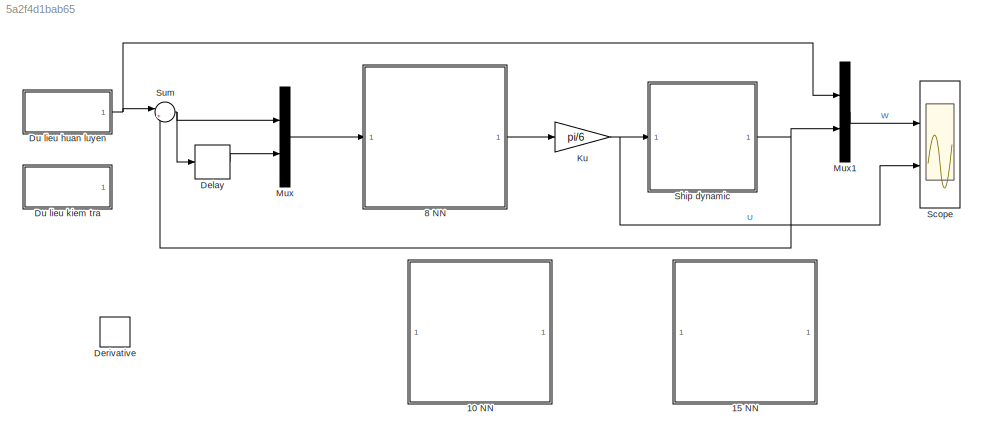
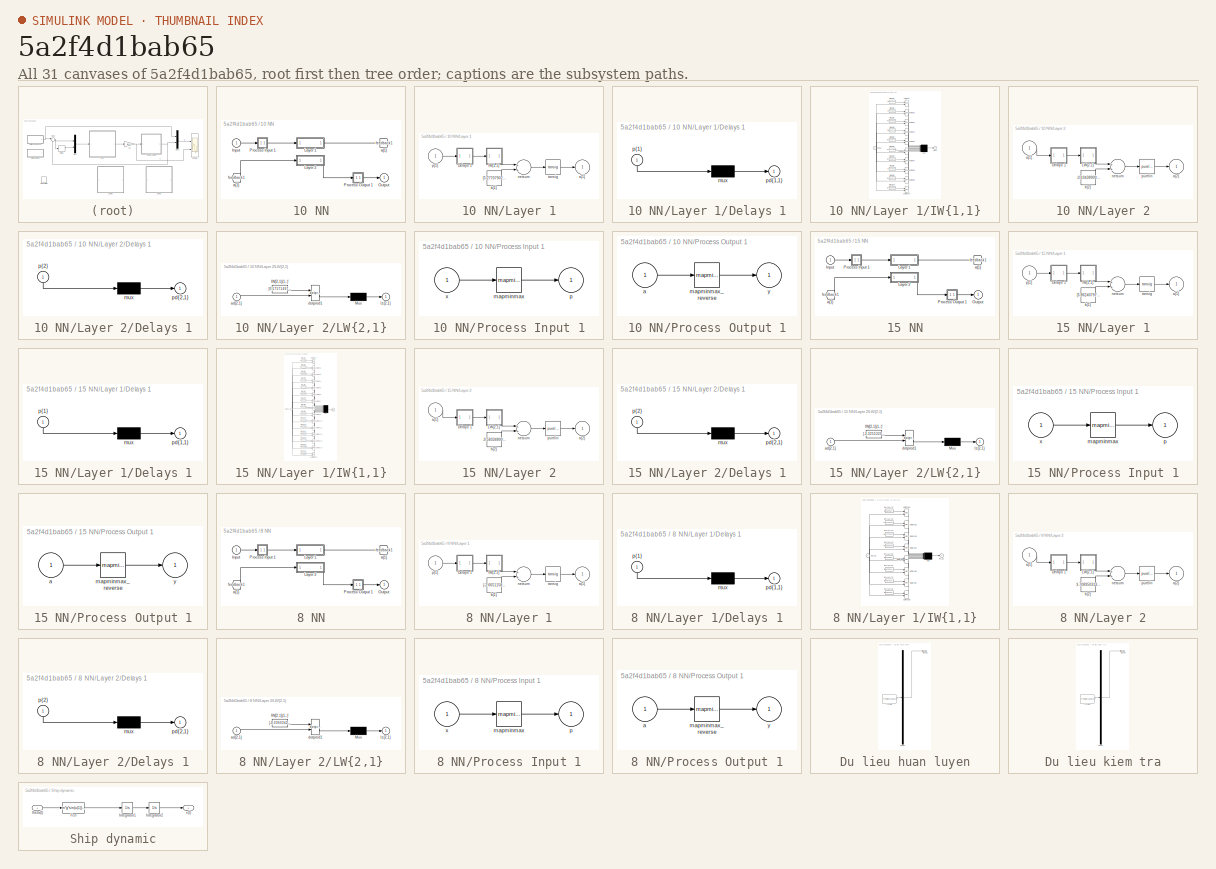
[diagram: thumbnail index - all 31 canvases of the model, root first then tree order]
MODEL slx_5a2f4d1bab65
KIND model
CONFIG AbsTol = auto
CONFIG EnableMultiTasking = off
CONFIG FixedStep = 0.05
CONFIG MaxStep = auto
CONFIG MinStep = auto
CONFIG RelTol = 1e-3
CONFIG SampleTimeConstraint = Unconstrained
CONFIG Solver = ode4
CONFIG SolverName = ode4
CONFIG StartTime = 0.0
CONFIG StopTime = 200
WORKSPACE source: MAT-file member
WORKSPACE MCOS: class17 (value not decoded)
BLOCK [SubSystem] 10 NN
  Ports = [1, 1]
  RequestExecContextInheritance = off
BLOCK [From] 10 NN/ a{1} 
  GotoTag = feedback1
BLOCK [Inport] 10 NN/Input
  IconDisplay = Port number
  PortDimensions = 2
BLOCK [SubSystem] 10 NN/Layer 1
  Ports = [1, 1]
  RequestExecContextInheritance = off
BLOCK [SubSystem] 10 NN/Layer 1/Delays 1
  Ports = [1, 1]
  RequestExecContextInheritance = off
BLOCK [Mux] 10 NN/Layer 1/Delays 1/mux
  Inputs = 1
  Ports = [1, 1]
BLOCK [Outport] 10 NN/Layer 1/Delays 1/pd{1,1}
  IconDisplay = Port number
BLOCK [Inport] 10 NN/Layer 1/Delays 1/p{1}
  IconDisplay = Port number
  PortDimensions = 2
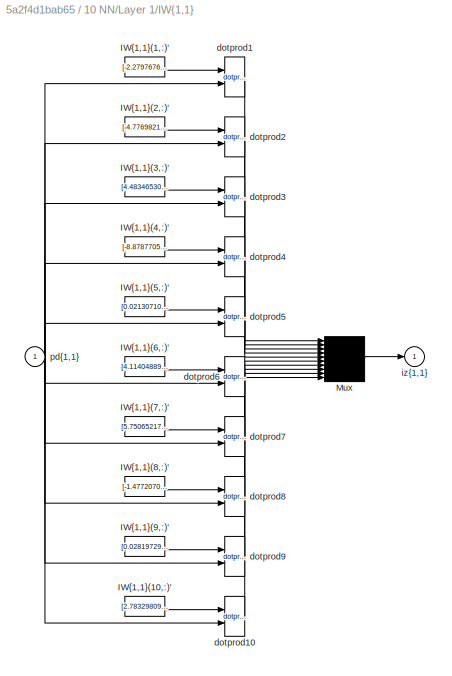
BLOCK [SubSystem] 10 NN/Layer 1/IW{1,1}
  Ports = [1, 1]
  RequestExecContextInheritance = off
BLOCK [Constant] 10 NN/Layer 1/IW{1,1}/IW{1,1}(1,:)'
  Value = [-2.2797676552253971493655626545660197734832763671875;-3.502244958718492728877436093171127140522003173828125]
BLOCK [Constant] 10 NN/Layer 1/IW{1,1}/IW{1,1}(10,:)'
  Value = [2.783298096638222585141875242698006331920623779296875;-2.62667784662431103015478583984076976776123046875]
BLOCK [Constant] 10 NN/Layer 1/IW{1,1}/IW{1,1}(2,:)'
  Value = [-4.77698212087745677223438178771175444126129150390625;1.701666339482249323822316000587306916713714599609375]
BLOCK [Constant] 10 NN/Layer 1/IW{1,1}/IW{1,1}(3,:)'
  Value = [4.48346530523704966952891481923870742321014404296875;2.74325059392237591282537323422729969024658203125]
BLOCK [Constant] 10 NN/Layer 1/IW{1,1}/IW{1,1}(4,:)'
  Value = [-8.8787705701287809034738529589958488941192626953125;8.80347368100989768890940467827022075653076171875]
BLOCK [Constant] 10 NN/Layer 1/IW{1,1}/IW{1,1}(5,:)'
  Value = [0.0213071003389636304259369126157253049314022064208984375;4.65473604057297318803421148913912475109100341796875]
BLOCK [Constant] 10 NN/Layer 1/IW{1,1}/IW{1,1}(6,:)'
  Value = [4.11404889277333385422252831631340086460113525390625;1.9276099380398454830043419860885478556156158447265625]
BLOCK [Constant] 10 NN/Layer 1/IW{1,1}/IW{1,1}(7,:)'
  Value = [5.75065217522637528446693977457471191883087158203125;-0.7323723908210431066123646814958192408084869384765625]
BLOCK [Constant] 10 NN/Layer 1/IW{1,1}/IW{1,1}(8,:)'
  Value = [-1.477207078651519456258256468572653830051422119140625;3.59919575488326159984353580512106418609619140625]
BLOCK [Constant] 10 NN/Layer 1/IW{1,1}/IW{1,1}(9,:)'
  Value = [0.02819729517911832850085573909382219426333904266357421875;-3.257905597923292706497022663825191557407379150390625]
BLOCK [Mux] 10 NN/Layer 1/IW{1,1}/Mux
  Inputs = 10
  Ports = [10, 1]
BLOCK [Reference] 10 NN/Layer 1/IW{1,1}/dotprod1  REF=neural/Weight Functions/dotprod
  Ports = [2, 1]
  SourceBlock = neural/Weight Functions/dotprod
  SourceProductBaseCode = Missing
  SourceProductName = MATLAB Runtime - Deep Learning Toolbox
  SourceType = DOTPROD
BLOCK [Reference] 10 NN/Layer 1/IW{1,1}/dotprod10  REF=neural/Weight Functions/dotprod
  Ports = [2, 1]
  SourceBlock = neural/Weight Functions/dotprod
  SourceProductBaseCode = Missing
  SourceProductName = MATLAB Runtime - Deep Learning Toolbox
  SourceType = DOTPROD
BLOCK [Reference] 10 NN/Layer 1/IW{1,1}/dotprod2  REF=neural/Weight Functions/dotprod
  Ports = [2, 1]
  SourceBlock = neural/Weight Functions/dotprod
  SourceProductBaseCode = Missing
  SourceProductName = MATLAB Runtime - Deep Learning Toolbox
  SourceType = DOTPROD
BLOCK [Reference] 10 NN/Layer 1/IW{1,1}/dotprod3  REF=neural/Weight Functions/dotprod
  Ports = [2, 1]
  SourceBlock = neural/Weight Functions/dotprod
  SourceProductBaseCode = Missing
  SourceProductName = MATLAB Runtime - Deep Learning Toolbox
  SourceType = DOTPROD
BLOCK [Reference] 10 NN/Layer 1/IW{1,1}/dotprod4  REF=neural/Weight Functions/dotprod
  Ports = [2, 1]
  SourceBlock = neural/Weight Functions/dotprod
  SourceProductBaseCode = Missing
  SourceProductName = MATLAB Runtime - Deep Learning Toolbox
  SourceType = DOTPROD
BLOCK [Reference] 10 NN/Layer 1/IW{1,1}/dotprod5  REF=neural/Weight Functions/dotprod
  Ports = [2, 1]
  SourceBlock = neural/Weight Functions/dotprod
  SourceProductBaseCode = Missing
  SourceProductName = MATLAB Runtime - Deep Learning Toolbox
  SourceType = DOTPROD
BLOCK [Reference] 10 NN/Layer 1/IW{1,1}/dotprod6  REF=neural/Weight Functions/dotprod
  Ports = [2, 1]
  SourceBlock = neural/Weight Functions/dotprod
  SourceProductBaseCode = Missing
  SourceProductName = MATLAB Runtime - Deep Learning Toolbox
  SourceType = DOTPROD
BLOCK [Reference] 10 NN/Layer 1/IW{1,1}/dotprod7  REF=neural/Weight Functions/dotprod
  Ports = [2, 1]
  SourceBlock = neural/Weight Functions/dotprod
  SourceProductBaseCode = Missing
  SourceProductName = MATLAB Runtime - Deep Learning Toolbox
  SourceType = DOTPROD
BLOCK [Reference] 10 NN/Layer 1/IW{1,1}/dotprod8  REF=neural/Weight Functions/dotprod
  Ports = [2, 1]
  SourceBlock = neural/Weight Functions/dotprod
  SourceProductBaseCode = Missing
  SourceProductName = MATLAB Runtime - Deep Learning Toolbox
  SourceType = DOTPROD
BLOCK [Reference] 10 NN/Layer 1/IW{1,1}/dotprod9  REF=neural/Weight Functions/dotprod
  Ports = [2, 1]
  SourceBlock = neural/Weight Functions/dotprod
  SourceProductBaseCode = Missing
  SourceProductName = MATLAB Runtime - Deep Learning Toolbox
  SourceType = DOTPROD
BLOCK [Outport] 10 NN/Layer 1/IW{1,1}/iz{1,1}
  IconDisplay = Port number
BLOCK [Inport] 10 NN/Layer 1/IW{1,1}/pd{1,1}
  IconDisplay = Port number
  PortDimensions = 2
BLOCK [Outport] 10 NN/Layer 1/a{1}
  IconDisplay = Port number
  InitialOutput = [0;0;0;0;0;0;0;0;0;0]
BLOCK [Constant] 10 NN/Layer 1/b{1}
  Value = [5.2770790270397309740246782894246280193328857421875;2.174030500263437470920280247810296714305877685546875;-3.28801516815363381596171166165731847286224365234375;-0.028691038809674308807107223628918291069567203521728515625;0.0127149931117040600192513721822251682169735431671142578125;0.1417708675961314168656457468387088738381862640380859375;0.018196998203845907854381280799316300544887781143188476562...<+163ch>
BLOCK [Sum] 10 NN/Layer 1/netsum
  Inputs = 2
  Ports = [2, 1]
BLOCK [Inport] 10 NN/Layer 1/p{1}
  IconDisplay = Port number
  PortDimensions = 2
BLOCK [Reference] 10 NN/Layer 1/tansig  REF=neural/Transfer Functions/tansig
  Ports = [1, 1]
  SourceBlock = neural/Transfer Functions/tansig
  SourceProductBaseCode = Missing
  SourceProductName = MATLAB Runtime - Deep Learning Toolbox
  SourceType = TANSIG
BLOCK [SubSystem] 10 NN/Layer 2
  Ports = [1, 1]
  RequestExecContextInheritance = off
BLOCK [SubSystem] 10 NN/Layer 2/Delays 1
  Ports = [1, 1]
  RequestExecContextInheritance = off
BLOCK [Mux] 10 NN/Layer 2/Delays 1/mux
  Inputs = 1
  Ports = [1, 1]
BLOCK [Outport] 10 NN/Layer 2/Delays 1/pd{2,1}
  IconDisplay = Port number
BLOCK [Inport] 10 NN/Layer 2/Delays 1/p{2}
  IconDisplay = Port number
  PortDimensions = 10
BLOCK [SubSystem] 10 NN/Layer 2/LW{2,1}
  Ports = [1, 1]
  RequestExecContextInheritance = off
BLOCK [Constant] 10 NN/Layer 2/LW{2,1}/IW{2,1}(1,:)'
  Value = [0.17571497241406730527302215705276466906070709228515625;-0.1442737729522455547570558564984821714460849761962890625;-0.059395420238290135006575809484274941496551036834716796875;-5.3959201117081221354965236969292163848876953125;4.871724534476609136390834464691579341888427734375;0.1714723988637835982995483163904282264411449432373046875;-4.7456468715381561196409165859222412109375;0.652170699393381347...<+146ch>
BLOCK [Mux] 10 NN/Layer 2/LW{2,1}/Mux
  Inputs = 1
  Ports = [1, 1]
BLOCK [Inport] 10 NN/Layer 2/LW{2,1}/ad{2,1}
  IconDisplay = Port number
  PortDimensions = 10
BLOCK [Reference] 10 NN/Layer 2/LW{2,1}/dotprod1  REF=neural/Weight Functions/dotprod
  Ports = [2, 1]
  SourceBlock = neural/Weight Functions/dotprod
  SourceProductBaseCode = Missing
  SourceProductName = MATLAB Runtime - Deep Learning Toolbox
  SourceType = DOTPROD
BLOCK [Outport] 10 NN/Layer 2/LW{2,1}/lz{2,1}
  IconDisplay = Port number
BLOCK [Inport] 10 NN/Layer 2/a{1} 
  IconDisplay = Port number
  PortDimensions = 10
BLOCK [Outport] 10 NN/Layer 2/a{2}
  IconDisplay = Port number
  InitialOutput = 0
BLOCK [Constant] 10 NN/Layer 2/b{2}
  Value = -0.10438900361002352579209428995454800315201282501220703125
BLOCK [Sum] 10 NN/Layer 2/netsum
  Inputs = 2
  Ports = [2, 1]
BLOCK [Reference] 10 NN/Layer 2/purelin  REF=neural/Transfer Functions/purelin
  Ports = [1, 1]
  SourceBlock = neural/Transfer Functions/purelin
  SourceProductBaseCode = Missing
  SourceProductName = MATLAB Runtime - Deep Learning Toolbox
  SourceType = PURELIN
BLOCK [Outport] 10 NN/Output
  IconDisplay = Port number
  InitialOutput = 0
BLOCK [SubSystem] 10 NN/Process Input 1
  Ports = [1, 1]
  RequestExecContextInheritance = off
BLOCK [Reference] 10 NN/Process Input 1/mapminmax  REF=neural/Processing Functions/mapminmax
  Ports = [1, 1]
  SourceBlock = neural/Processing Functions/mapminmax
  SourceProductBaseCode = Missing
  SourceProductName = MATLAB Runtime - Deep Learning Toolbox
  SourceType = MAPMINMAX Preprocess
BLOCK [Outport] 10 NN/Process Input 1/p
  IconDisplay = Port number
  PortDimensions = 2
BLOCK [Inport] 10 NN/Process Input 1/x
  IconDisplay = Port number
  PortDimensions = 2
BLOCK [SubSystem] 10 NN/Process Output 1
  Ports = [1, 1]
  RequestExecContextInheritance = off
BLOCK [Inport] 10 NN/Process Output 1/a
  IconDisplay = Port number
  PortDimensions = 1
BLOCK [Reference] 10 NN/Process Output 1/mapminmax_reverse  REF=neural/Processing Functions/mapminmax_reverse
  Ports = [1, 1]
  SourceBlock = neural/Processing Functions/mapminmax_reverse
  SourceProductBaseCode = Missing
  SourceProductName = MATLAB Runtime - Deep Learning Toolbox
  SourceType = MAPMINMAX Reverse Process
BLOCK [Outport] 10 NN/Process Output 1/y
  IconDisplay = Port number
  PortDimensions = 1
BLOCK [Goto] 10 NN/a{1}
  GotoTag = feedback1
BLOCK [SubSystem] 15 NN
  Ports = [1, 1]
  RequestExecContextInheritance = off
BLOCK [From] 15 NN/ a{1} 
  GotoTag = feedback1
BLOCK [Inport] 15 NN/Input
  IconDisplay = Port number
  PortDimensions = 2
BLOCK [SubSystem] 15 NN/Layer 1
  Ports = [1, 1]
  RequestExecContextInheritance = off
BLOCK [SubSystem] 15 NN/Layer 1/Delays 1
  Ports = [1, 1]
  RequestExecContextInheritance = off
BLOCK [Mux] 15 NN/Layer 1/Delays 1/mux
  Inputs = 1
  Ports = [1, 1]
BLOCK [Outport] 15 NN/Layer 1/Delays 1/pd{1,1}
  IconDisplay = Port number
BLOCK [Inport] 15 NN/Layer 1/Delays 1/p{1}
  IconDisplay = Port number
  PortDimensions = 2
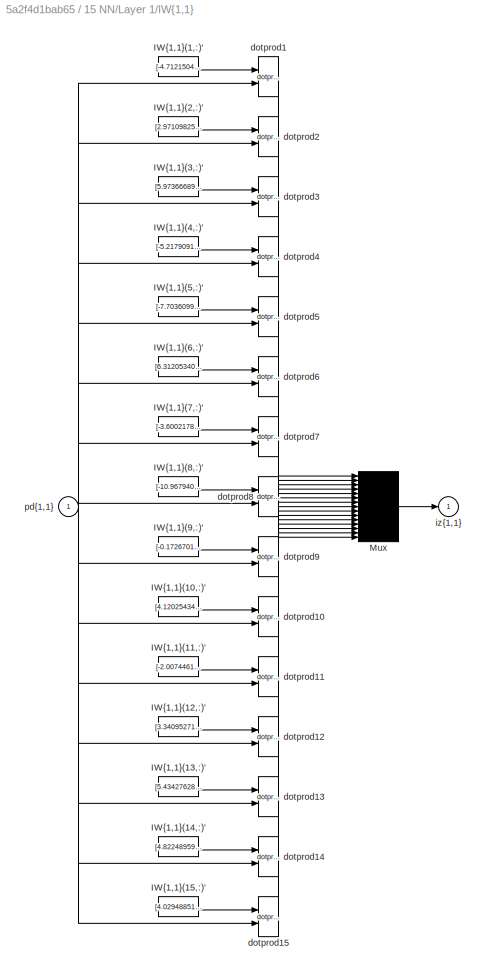
BLOCK [SubSystem] 15 NN/Layer 1/IW{1,1}
  Ports = [1, 1]
  RequestExecContextInheritance = off
BLOCK [Constant] 15 NN/Layer 1/IW{1,1}/IW{1,1}(1,:)'
  Value = [-4.71215041396108968996259136474691331386566162109375;1.780506426440681355671813435037620365619659423828125]
BLOCK [Constant] 15 NN/Layer 1/IW{1,1}/IW{1,1}(10,:)'
  Value = [4.12025434931178136110929699498228728771209716796875;-4.52385009367983403905100203701294958591461181640625]
BLOCK [Constant] 15 NN/Layer 1/IW{1,1}/IW{1,1}(11,:)'
  Value = [-2.0074461728793817627547468873672187328338623046875;-3.7526120703485474905392038635909557342529296875]
BLOCK [Constant] 15 NN/Layer 1/IW{1,1}/IW{1,1}(12,:)'
  Value = [3.340952714454374028463234935770742595195770263671875;-4.351809800582049803097106632776558399200439453125]
BLOCK [Constant] 15 NN/Layer 1/IW{1,1}/IW{1,1}(13,:)'
  Value = [5.43427628877882451519099049619399011135101318359375;-3.498485075478043881958001293241977691650390625]
BLOCK [Constant] 15 NN/Layer 1/IW{1,1}/IW{1,1}(14,:)'
  Value = [4.8224895927648727678160867071710526943206787109375;-0.6287203356094368533746319371857680380344390869140625]
BLOCK [Constant] 15 NN/Layer 1/IW{1,1}/IW{1,1}(15,:)'
  Value = [4.02948851162805876668926430284045636653900146484375;1.545107021311652228945376919000409543514251708984375]
BLOCK [Constant] 15 NN/Layer 1/IW{1,1}/IW{1,1}(2,:)'
  Value = [2.971098252283343565949280673521570861339569091796875;5.1213675586361286917735924362204968929290771484375]
BLOCK [Constant] 15 NN/Layer 1/IW{1,1}/IW{1,1}(3,:)'
  Value = [5.97366689732686761971081068622879683971405029296875;0.0798351238891231440586437884121551178395748138427734375]
BLOCK [Constant] 15 NN/Layer 1/IW{1,1}/IW{1,1}(4,:)'
  Value = [-5.217909171398876111425124690867960453033447265625;4.2123457935510106864285262417979538440704345703125]
BLOCK [Constant] 15 NN/Layer 1/IW{1,1}/IW{1,1}(5,:)'
  Value = [-7.70360997518827783636652384302578866481781005859375;2.879056280608096596296263669501058757305145263671875]
BLOCK [Constant] 15 NN/Layer 1/IW{1,1}/IW{1,1}(6,:)'
  Value = [6.31205340535731007634012712514959275722503662109375;1.6428196827342491648238365087308920919895172119140625]
BLOCK [Constant] 15 NN/Layer 1/IW{1,1}/IW{1,1}(7,:)'
  Value = [-3.600217836784150637896573243779130280017852783203125;-4.30454291018352019904114058590494096279144287109375]
BLOCK [Constant] 15 NN/Layer 1/IW{1,1}/IW{1,1}(8,:)'
  Value = [-10.967940446250363351055057137273252010345458984375;11.0084738977530349757216754369437694549560546875]
BLOCK [Constant] 15 NN/Layer 1/IW{1,1}/IW{1,1}(9,:)'
  Value = [-0.1726701083803710845554491015718667767941951751708984375;-7.70986211364361384568155699525959789752960205078125]
BLOCK [Mux] 15 NN/Layer 1/IW{1,1}/Mux
  Inputs = 15
  Ports = [15, 1]
BLOCK [Reference] 15 NN/Layer 1/IW{1,1}/dotprod1  REF=neural/Weight Functions/dotprod
  Ports = [2, 1]
  SourceBlock = neural/Weight Functions/dotprod
  SourceProductBaseCode = Missing
  SourceProductName = MATLAB Runtime - Deep Learning Toolbox
  SourceType = DOTPROD
BLOCK [Reference] 15 NN/Layer 1/IW{1,1}/dotprod10  REF=neural/Weight Functions/dotprod
  Ports = [2, 1]
  SourceBlock = neural/Weight Functions/dotprod
  SourceProductBaseCode = Missing
  SourceProductName = MATLAB Runtime - Deep Learning Toolbox
  SourceType = DOTPROD
BLOCK [Reference] 15 NN/Layer 1/IW{1,1}/dotprod11  REF=neural/Weight Functions/dotprod
  Ports = [2, 1]
  SourceBlock = neural/Weight Functions/dotprod
  SourceProductBaseCode = Missing
  SourceProductName = MATLAB Runtime - Deep Learning Toolbox
  SourceType = DOTPROD
BLOCK [Reference] 15 NN/Layer 1/IW{1,1}/dotprod12  REF=neural/Weight Functions/dotprod
  Ports = [2, 1]
  SourceBlock = neural/Weight Functions/dotprod
  SourceProductBaseCode = Missing
  SourceProductName = MATLAB Runtime - Deep Learning Toolbox
  SourceType = DOTPROD
BLOCK [Reference] 15 NN/Layer 1/IW{1,1}/dotprod13  REF=neural/Weight Functions/dotprod
  Ports = [2, 1]
  SourceBlock = neural/Weight Functions/dotprod
  SourceProductBaseCode = Missing
  SourceProductName = MATLAB Runtime - Deep Learning Toolbox
  SourceType = DOTPROD
BLOCK [Reference] 15 NN/Layer 1/IW{1,1}/dotprod14  REF=neural/Weight Functions/dotprod
  Ports = [2, 1]
  SourceBlock = neural/Weight Functions/dotprod
  SourceProductBaseCode = Missing
  SourceProductName = MATLAB Runtime - Deep Learning Toolbox
  SourceType = DOTPROD
BLOCK [Reference] 15 NN/Layer 1/IW{1,1}/dotprod15  REF=neural/Weight Functions/dotprod
  Ports = [2, 1]
  SourceBlock = neural/Weight Functions/dotprod
  SourceProductBaseCode = Missing
  SourceProductName = MATLAB Runtime - Deep Learning Toolbox
  SourceType = DOTPROD
BLOCK [Reference] 15 NN/Layer 1/IW{1,1}/dotprod2  REF=neural/Weight Functions/dotprod
  Ports = [2, 1]
  SourceBlock = neural/Weight Functions/dotprod
  SourceProductBaseCode = Missing
  SourceProductName = MATLAB Runtime - Deep Learning Toolbox
  SourceType = DOTPROD
BLOCK [Reference] 15 NN/Layer 1/IW{1,1}/dotprod3  REF=neural/Weight Functions/dotprod
  Ports = [2, 1]
  SourceBlock = neural/Weight Functions/dotprod
  SourceProductBaseCode = Missing
  SourceProductName = MATLAB Runtime - Deep Learning Toolbox
  SourceType = DOTPROD
BLOCK [Reference] 15 NN/Layer 1/IW{1,1}/dotprod4  REF=neural/Weight Functions/dotprod
  Ports = [2, 1]
  SourceBlock = neural/Weight Functions/dotprod
  SourceProductBaseCode = Missing
  SourceProductName = MATLAB Runtime - Deep Learning Toolbox
  SourceType = DOTPROD
BLOCK [Reference] 15 NN/Layer 1/IW{1,1}/dotprod5  REF=neural/Weight Functions/dotprod
  Ports = [2, 1]
  SourceBlock = neural/Weight Functions/dotprod
  SourceProductBaseCode = Missing
  SourceProductName = MATLAB Runtime - Deep Learning Toolbox
  SourceType = DOTPROD
BLOCK [Reference] 15 NN/Layer 1/IW{1,1}/dotprod6  REF=neural/Weight Functions/dotprod
  Ports = [2, 1]
  SourceBlock = neural/Weight Functions/dotprod
  SourceProductBaseCode = Missing
  SourceProductName = MATLAB Runtime - Deep Learning Toolbox
  SourceType = DOTPROD
BLOCK [Reference] 15 NN/Layer 1/IW{1,1}/dotprod7  REF=neural/Weight Functions/dotprod
  Ports = [2, 1]
  SourceBlock = neural/Weight Functions/dotprod
  SourceProductBaseCode = Missing
  SourceProductName = MATLAB Runtime - Deep Learning Toolbox
  SourceType = DOTPROD
BLOCK [Reference] 15 NN/Layer 1/IW{1,1}/dotprod8  REF=neural/Weight Functions/dotprod
  Ports = [2, 1]
  SourceBlock = neural/Weight Functions/dotprod
  SourceProductBaseCode = Missing
  SourceProductName = MATLAB Runtime - Deep Learning Toolbox
  SourceType = DOTPROD
BLOCK [Reference] 15 NN/Layer 1/IW{1,1}/dotprod9  REF=neural/Weight Functions/dotprod
  Ports = [2, 1]
  SourceBlock = neural/Weight Functions/dotprod
  SourceProductBaseCode = Missing
  SourceProductName = MATLAB Runtime - Deep Learning Toolbox
  SourceType = DOTPROD
BLOCK [Outport] 15 NN/Layer 1/IW{1,1}/iz{1,1}
  IconDisplay = Port number
BLOCK [Inport] 15 NN/Layer 1/IW{1,1}/pd{1,1}
  IconDisplay = Port number
  PortDimensions = 2
BLOCK [Outport] 15 NN/Layer 1/a{1}
  IconDisplay = Port number
  InitialOutput = [0;0;0;0;0;0;0;0;0;0;0;0;0;0;0]
BLOCK [Constant] 15 NN/Layer 1/b{1}
  Value = [5.86240797509150279864797994378022849559783935546875;-4.25299659028725596243702966603450477123260498046875;-1.5294844191921674880774162375018931925296783447265625;2.169046298594974331308549153618514537811279296875;0.60265260236415352235184172968729399144649505615234375;-2.2272073999962156420906467246823012828826904296875;0.887295700831016720400157282711006700992584228515625;0.33122251827897924991...<+408ch>
BLOCK [Sum] 15 NN/Layer 1/netsum
  Inputs = 2
  Ports = [2, 1]
BLOCK [Inport] 15 NN/Layer 1/p{1}
  IconDisplay = Port number
  PortDimensions = 2
BLOCK [Reference] 15 NN/Layer 1/tansig  REF=neural/Transfer Functions/tansig
  Ports = [1, 1]
  SourceBlock = neural/Transfer Functions/tansig
  SourceProductBaseCode = Missing
  SourceProductName = MATLAB Runtime - Deep Learning Toolbox
  SourceType = TANSIG
BLOCK [SubSystem] 15 NN/Layer 2
  Ports = [1, 1]
  RequestExecContextInheritance = off
BLOCK [SubSystem] 15 NN/Layer 2/Delays 1
  Ports = [1, 1]
  RequestExecContextInheritance = off
BLOCK [Mux] 15 NN/Layer 2/Delays 1/mux
  Inputs = 1
  Ports = [1, 1]
BLOCK [Outport] 15 NN/Layer 2/Delays 1/pd{2,1}
  IconDisplay = Port number
BLOCK [Inport] 15 NN/Layer 2/Delays 1/p{2}
  IconDisplay = Port number
  PortDimensions = 15
BLOCK [SubSystem] 15 NN/Layer 2/LW{2,1}
  Ports = [1, 1]
  RequestExecContextInheritance = off
BLOCK [Constant] 15 NN/Layer 2/LW{2,1}/IW{2,1}(1,:)'
  Value = [-1.3255320965360131157950718261417932808399200439453125;0.04186898430802839243813906477953423745930194854736328125;2.0463318694364840411026307265274226665496826171875;2.5985387028032906897578868665732443332672119140625;4.92482245533307771978570599458180367946624755859375;1.6592999014721616646284019225277006626129150390625;-1.426386485086742705874485181993804872035980224609375;-6.68573781153137236...<+413ch>
BLOCK [Mux] 15 NN/Layer 2/LW{2,1}/Mux
  Inputs = 1
  Ports = [1, 1]
BLOCK [Inport] 15 NN/Layer 2/LW{2,1}/ad{2,1}
  IconDisplay = Port number
  PortDimensions = 15
BLOCK [Reference] 15 NN/Layer 2/LW{2,1}/dotprod1  REF=neural/Weight Functions/dotprod
  Ports = [2, 1]
  SourceBlock = neural/Weight Functions/dotprod
  SourceProductBaseCode = Missing
  SourceProductName = MATLAB Runtime - Deep Learning Toolbox
  SourceType = DOTPROD
BLOCK [Outport] 15 NN/Layer 2/LW{2,1}/lz{2,1}
  IconDisplay = Port number
BLOCK [Inport] 15 NN/Layer 2/a{1} 
  IconDisplay = Port number
  PortDimensions = 15
BLOCK [Outport] 15 NN/Layer 2/a{2}
  IconDisplay = Port number
  InitialOutput = 0
BLOCK [Constant] 15 NN/Layer 2/b{2}
  Value = -0.5833480003442712558126004296354949474334716796875
BLOCK [Sum] 15 NN/Layer 2/netsum
  Inputs = 2
  Ports = [2, 1]
BLOCK [Reference] 15 NN/Layer 2/purelin  REF=neural/Transfer Functions/purelin
  Ports = [1, 1]
  SourceBlock = neural/Transfer Functions/purelin
  SourceProductBaseCode = Missing
  SourceProductName = MATLAB Runtime - Deep Learning Toolbox
  SourceType = PURELIN
BLOCK [Outport] 15 NN/Output
  IconDisplay = Port number
  InitialOutput = 0
BLOCK [SubSystem] 15 NN/Process Input 1
  Ports = [1, 1]
  RequestExecContextInheritance = off
BLOCK [Reference] 15 NN/Process Input 1/mapminmax  REF=neural/Processing Functions/mapminmax
  Ports = [1, 1]
  SourceBlock = neural/Processing Functions/mapminmax
  SourceProductBaseCode = Missing
  SourceProductName = MATLAB Runtime - Deep Learning Toolbox
  SourceType = MAPMINMAX Preprocess
BLOCK [Outport] 15 NN/Process Input 1/p
  IconDisplay = Port number
  PortDimensions = 2
BLOCK [Inport] 15 NN/Process Input 1/x
  IconDisplay = Port number
  PortDimensions = 2
BLOCK [SubSystem] 15 NN/Process Output 1
  Ports = [1, 1]
  RequestExecContextInheritance = off
BLOCK [Inport] 15 NN/Process Output 1/a
  IconDisplay = Port number
  PortDimensions = 1
BLOCK [Reference] 15 NN/Process Output 1/mapminmax_reverse  REF=neural/Processing Functions/mapminmax_reverse
  Ports = [1, 1]
  SourceBlock = neural/Processing Functions/mapminmax_reverse
  SourceProductBaseCode = Missing
  SourceProductName = MATLAB Runtime - Deep Learning Toolbox
  SourceType = MAPMINMAX Reverse Process
BLOCK [Outport] 15 NN/Process Output 1/y
  IconDisplay = Port number
  PortDimensions = 1
BLOCK [Goto] 15 NN/a{1}
  GotoTag = feedback1
BLOCK [SubSystem] 8 NN
  Ports = [1, 1]
  RequestExecContextInheritance = off
BLOCK [From] 8 NN/ a{1} 
  GotoTag = feedback1
BLOCK [Inport] 8 NN/Input
  IconDisplay = Port number
  PortDimensions = 2
BLOCK [SubSystem] 8 NN/Layer 1
  Ports = [1, 1]
  RequestExecContextInheritance = off
BLOCK [SubSystem] 8 NN/Layer 1/Delays 1
  Ports = [1, 1]
  RequestExecContextInheritance = off
BLOCK [Mux] 8 NN/Layer 1/Delays 1/mux
  Inputs = 1
  Ports = [1, 1]
BLOCK [Outport] 8 NN/Layer 1/Delays 1/pd{1,1}
  IconDisplay = Port number
BLOCK [Inport] 8 NN/Layer 1/Delays 1/p{1}
  IconDisplay = Port number
  PortDimensions = 2
BLOCK [SubSystem] 8 NN/Layer 1/IW{1,1}
  Ports = [1, 1]
  RequestExecContextInheritance = off
BLOCK [Constant] 8 NN/Layer 1/IW{1,1}/IW{1,1}(1,:)'
  Value = [-3.166030482859578665255639862152747809886932373046875;-5.55992414753659236481553307385183870792388916015625]
BLOCK [Constant] 8 NN/Layer 1/IW{1,1}/IW{1,1}(2,:)'
  Value = [7.75721544876872659557420774945057928562164306640625;8.822237395701780116041845758445560932159423828125]
BLOCK [Constant] 8 NN/Layer 1/IW{1,1}/IW{1,1}(3,:)'
  Value = [0.0177012373306986679766250603051958023570477962493896484375;-9.2224873423576365638609786401502788066864013671875]
BLOCK [Constant] 8 NN/Layer 1/IW{1,1}/IW{1,1}(4,:)'
  Value = [18.469849389561264985104571678675711154937744140625;-1.82005012290620271642183070071041584014892578125]
BLOCK [Constant] 8 NN/Layer 1/IW{1,1}/IW{1,1}(5,:)'
  Value = [-9.3499581550587951284114751615561544895172119140625;-0.490326159803559924466043185020680539309978485107421875]
BLOCK [Constant] 8 NN/Layer 1/IW{1,1}/IW{1,1}(6,:)'
  Value = [-8.9616642172909646291145691066049039363861083984375;8.8608894633885224578762063174508512020111083984375]
BLOCK [Constant] 8 NN/Layer 1/IW{1,1}/IW{1,1}(7,:)'
  Value = [-6.1997312759503255819026890094392001628875732421875;11.0170287747126707245115539990365505218505859375]
BLOCK [Constant] 8 NN/Layer 1/IW{1,1}/IW{1,1}(8,:)'
  Value = [-2.50504909105153839021795647568069398403167724609375;3.1014485247065000095290088211186230182647705078125]
BLOCK [Mux] 8 NN/Layer 1/IW{1,1}/Mux
  Inputs = 8
  Ports = [8, 1]
BLOCK [Reference] 8 NN/Layer 1/IW{1,1}/dotprod1  REF=neural/Weight Functions/dotprod
  Ports = [2, 1]
  SourceBlock = neural/Weight Functions/dotprod
  SourceProductBaseCode = Missing
  SourceProductName = MATLAB Runtime - Deep Learning Toolbox
  SourceType = DOTPROD
BLOCK [Reference] 8 NN/Layer 1/IW{1,1}/dotprod2  REF=neural/Weight Functions/dotprod
  Ports = [2, 1]
  SourceBlock = neural/Weight Functions/dotprod
  SourceProductBaseCode = Missing
  SourceProductName = MATLAB Runtime - Deep Learning Toolbox
  SourceType = DOTPROD
BLOCK [Reference] 8 NN/Layer 1/IW{1,1}/dotprod3  REF=neural/Weight Functions/dotprod
  Ports = [2, 1]
  SourceBlock = neural/Weight Functions/dotprod
  SourceProductBaseCode = Missing
  SourceProductName = MATLAB Runtime - Deep Learning Toolbox
  SourceType = DOTPROD
BLOCK [Reference] 8 NN/Layer 1/IW{1,1}/dotprod4  REF=neural/Weight Functions/dotprod
  Ports = [2, 1]
  SourceBlock = neural/Weight Functions/dotprod
  SourceProductBaseCode = Missing
  SourceProductName = MATLAB Runtime - Deep Learning Toolbox
  SourceType = DOTPROD
BLOCK [Reference] 8 NN/Layer 1/IW{1,1}/dotprod5  REF=neural/Weight Functions/dotprod
  Ports = [2, 1]
  SourceBlock = neural/Weight Functions/dotprod
  SourceProductBaseCode = Missing
  SourceProductName = MATLAB Runtime - Deep Learning Toolbox
  SourceType = DOTPROD
BLOCK [Reference] 8 NN/Layer 1/IW{1,1}/dotprod6  REF=neural/Weight Functions/dotprod
  Ports = [2, 1]
  SourceBlock = neural/Weight Functions/dotprod
  SourceProductBaseCode = Missing
  SourceProductName = MATLAB Runtime - Deep Learning Toolbox
  SourceType = DOTPROD
BLOCK [Reference] 8 NN/Layer 1/IW{1,1}/dotprod7  REF=neural/Weight Functions/dotprod
  Ports = [2, 1]
  SourceBlock = neural/Weight Functions/dotprod
  SourceProductBaseCode = Missing
  SourceProductName = MATLAB Runtime - Deep Learning Toolbox
  SourceType = DOTPROD
BLOCK [Reference] 8 NN/Layer 1/IW{1,1}/dotprod8  REF=neural/Weight Functions/dotprod
  Ports = [2, 1]
  SourceBlock = neural/Weight Functions/dotprod
  SourceProductBaseCode = Missing
  SourceProductName = MATLAB Runtime - Deep Learning Toolbox
  SourceType = DOTPROD
BLOCK [Outport] 8 NN/Layer 1/IW{1,1}/iz{1,1}
  IconDisplay = Port number
BLOCK [Inport] 8 NN/Layer 1/IW{1,1}/pd{1,1}
  IconDisplay = Port number
  PortDimensions = 2
BLOCK [Outport] 8 NN/Layer 1/a{1}
  IconDisplay = Port number
  InitialOutput = [0;0;0;0;0;0;0;0]
BLOCK [Constant] 8 NN/Layer 1/b{1}
  Value = [-2.665115811441488791189158291672356426715850830078125;-15.5670386609506952169112992123700678348541259765625;0.43774834483061209056131701800040900707244873046875;-2.480347096899180314721888862550258636474609375;0.436367551962506705631739123418810777366161346435546875;0.364583997550048943825373726213001646101474761962890625;6.66233421384612256588297896087169647216796875;-3.395444491633917927231323...<+27ch>
BLOCK [Sum] 8 NN/Layer 1/netsum
  Inputs = 2
  Ports = [2, 1]
BLOCK [Inport] 8 NN/Layer 1/p{1}
  IconDisplay = Port number
  PortDimensions = 2
BLOCK [Reference] 8 NN/Layer 1/tansig  REF=neural/Transfer Functions/tansig
  Ports = [1, 1]
  SourceBlock = neural/Transfer Functions/tansig
  SourceProductBaseCode = Missing
  SourceProductName = MATLAB Runtime - Deep Learning Toolbox
  SourceType = TANSIG
BLOCK [SubSystem] 8 NN/Layer 2
  Ports = [1, 1]
  RequestExecContextInheritance = off
BLOCK [SubSystem] 8 NN/Layer 2/Delays 1
  Ports = [1, 1]
  RequestExecContextInheritance = off
BLOCK [Mux] 8 NN/Layer 2/Delays 1/mux
  Inputs = 1
  Ports = [1, 1]
BLOCK [Outport] 8 NN/Layer 2/Delays 1/pd{2,1}
  IconDisplay = Port number
BLOCK [Inport] 8 NN/Layer 2/Delays 1/p{2}
  IconDisplay = Port number
  PortDimensions = 8
BLOCK [SubSystem] 8 NN/Layer 2/LW{2,1}
  Ports = [1, 1]
  RequestExecContextInheritance = off
BLOCK [Constant] 8 NN/Layer 2/LW{2,1}/IW{2,1}(1,:)'
  Value = [-0.036034266228908894136306884092846303246915340423583984375;-0.04262085885997822509718702121972455643117427825927734375;-5.174673934781960582540705217979848384857177734375;-0.08847431722565061995577906373000587336719036102294921875;4.9133574139851958761937567032873630523681640625;-6.0372621016925496206795287434943020343780517578125;-1.6370157212879725694421040316228754818439483642578125;0.015620...<+52ch>
BLOCK [Mux] 8 NN/Layer 2/LW{2,1}/Mux
  Inputs = 1
  Ports = [1, 1]
BLOCK [Inport] 8 NN/Layer 2/LW{2,1}/ad{2,1}
  IconDisplay = Port number
  PortDimensions = 8
BLOCK [Reference] 8 NN/Layer 2/LW{2,1}/dotprod1  REF=neural/Weight Functions/dotprod
  Ports = [2, 1]
  SourceBlock = neural/Weight Functions/dotprod
  SourceProductBaseCode = Missing
  SourceProductName = MATLAB Runtime - Deep Learning Toolbox
  SourceType = DOTPROD
BLOCK [Outport] 8 NN/Layer 2/LW{2,1}/lz{2,1}
  IconDisplay = Port number
BLOCK [Inport] 8 NN/Layer 2/a{1} 
  IconDisplay = Port number
  PortDimensions = 8
BLOCK [Outport] 8 NN/Layer 2/a{2}
  IconDisplay = Port number
  InitialOutput = 0
BLOCK [Constant] 8 NN/Layer 2/b{2}
  Value = 3.708950313361973893933054569060914218425750732421875
BLOCK [Sum] 8 NN/Layer 2/netsum
  Inputs = 2
  Ports = [2, 1]
BLOCK [Reference] 8 NN/Layer 2/purelin  REF=neural/Transfer Functions/purelin
  Ports = [1, 1]
  SourceBlock = neural/Transfer Functions/purelin
  SourceProductBaseCode = Missing
  SourceProductName = MATLAB Runtime - Deep Learning Toolbox
  SourceType = PURELIN
BLOCK [Outport] 8 NN/Output
  IconDisplay = Port number
  InitialOutput = 0
BLOCK [SubSystem] 8 NN/Process Input 1
  Ports = [1, 1]
  RequestExecContextInheritance = off
BLOCK [Reference] 8 NN/Process Input 1/mapminmax  REF=neural/Processing Functions/mapminmax
  Ports = [1, 1]
  SourceBlock = neural/Processing Functions/mapminmax
  SourceProductBaseCode = Missing
  SourceProductName = MATLAB Runtime - Deep Learning Toolbox
  SourceType = MAPMINMAX Preprocess
BLOCK [Outport] 8 NN/Process Input 1/p
  IconDisplay = Port number
  PortDimensions = 2
BLOCK [Inport] 8 NN/Process Input 1/x
  IconDisplay = Port number
  PortDimensions = 2
BLOCK [SubSystem] 8 NN/Process Output 1
  Ports = [1, 1]
  RequestExecContextInheritance = off
BLOCK [Inport] 8 NN/Process Output 1/a
  IconDisplay = Port number
  PortDimensions = 1
BLOCK [Reference] 8 NN/Process Output 1/mapminmax_reverse  REF=neural/Processing Functions/mapminmax_reverse
  Ports = [1, 1]
  SourceBlock = neural/Processing Functions/mapminmax_reverse
  SourceProductBaseCode = Missing
  SourceProductName = MATLAB Runtime - Deep Learning Toolbox
  SourceType = MAPMINMAX Reverse Process
BLOCK [Outport] 8 NN/Process Output 1/y
  IconDisplay = Port number
  PortDimensions = 1
BLOCK [Goto] 8 NN/a{1}
  GotoTag = feedback1
BLOCK [Delay] Delay
  DelayLength = 1
  InputPortMap = u0
  Ports = [1, 1]
BLOCK [Derivative] Derivative
BLOCK [SubSystem] Du lieu huan luyen
  ClipboardFcn = sigbuilder_block('clipboard');
  CloseFcn = sigbuilder_block('close');
  ContinueFcn = sigbuilder_block('continue');
  CopyFcn = sigbuilder_block('copy');
  DeleteFcn = sigbuilder_block('delete');
  LoadFcn = sigbuilder_block('load');
  MaskHideContents = on
  ModelCloseFcn = sigbuilder_block('modelClose');
  NameChangeFcn = sigbuilder_block('namechange');
  OpenFcn = sigbuilder_block('open',[316.2 97.8 550.8 400.2 ]);
  PauseFcn = sigbuilder_block('pause');
  Ports = [0, 1]
  PreSaveFcn = sigbuilder_block('preSave');
  RequestExecContextInheritance = off
  StartFcn = sigbuilder_block('start');
  StopFcn = sigbuilder_block('stop');
  Tag = STV Subsys
BLOCK [Demux] Du lieu huan luyen/Demux
  Outputs = 1
  Ports = [1, 1]
  Tag = STV Demux
BLOCK [FromWorkspace] Du lieu huan luyen/FromWs
  SampleTime = 0
  Tag = STV FromWs
  VariableName = tuvar
  ZeroCross = on
BLOCK [Outport] Du lieu huan luyen/Signal 1
  IconDisplay = Port number
  Tag = STV Outport
BLOCK [SubSystem] Du lieu kiem tra
  ClipboardFcn = sigbuilder_block('clipboard');
  CloseFcn = sigbuilder_block('close');
  ContinueFcn = sigbuilder_block('continue');
  CopyFcn = sigbuilder_block('copy');
  DeleteFcn = sigbuilder_block('delete');
  LoadFcn = sigbuilder_block('load');
  MaskHideContents = on
  ModelCloseFcn = sigbuilder_block('modelClose');
  NameChangeFcn = sigbuilder_block('namechange');
  OpenFcn = sigbuilder_block('open',[316.2 97.8 550.8 400.2 ]);
  PauseFcn = sigbuilder_block('pause');
  Ports = [0, 1]
  PreSaveFcn = sigbuilder_block('preSave');
  RequestExecContextInheritance = off
  StartFcn = sigbuilder_block('start');
  StopFcn = sigbuilder_block('stop');
  Tag = STV Subsys
BLOCK [Demux] Du lieu kiem tra/Demux
  Outputs = 1
  Ports = [1, 1]
  Tag = STV Demux
BLOCK [FromWorkspace] Du lieu kiem tra/FromWs
  SampleTime = 0
  Tag = STV FromWs
  VariableName = tuvar
  ZeroCross = on
BLOCK [Outport] Du lieu kiem tra/Signal 1
  IconDisplay = Port number
  Tag = STV Outport
BLOCK [Gain] Ku
  Gain = pi/6
  OutDataTypeStr = Inherit: Inherit via internal rule
  ParamDataTypeStr = Inherit: Inherit via internal rule
  SaturateOnIntegerOverflow = off
BLOCK [Mux] Mux
  DisplayOption = bar
  Inputs = 2
  Ports = [2, 1]
BLOCK [Mux] Mux1
  DisplayOption = bar
  Inputs = 2
  Ports = [2, 1]
BLOCK [Scope] Scope
  Floating = off
  NumInputPorts = 2
  Ports = [2]
  ScopeSpecificationString = Simulink.scopes.TimeScopeBlockCfg('CurrentConfiguration', extmgr.ConfigurationSet(extmgr.Configuration('Core','General UI',true,'FigureColor',[1 1 1]),extmgr.Configuration('Core','Source UI',true),extmgr.Configuration('Sources','WiredSimulink',true),extmgr.Configuration('Visuals','Time Domain',true,'SerializedDisplays',{struct('MinYLimReal','-1.12','MaxYLimReal','1.08','YLabelReal','','MinYLimMag'...<+2294ch>
BLOCK [SubSystem] Ship dynamic
  Ports = [1, 1]
  RequestExecContextInheritance = off
BLOCK [Fcn] Ship dynamic/Fcn
  Expr = m*g*sin(u(1)) / (J/R^2 + m)
BLOCK [Integrator] Ship dynamic/Integrator1
  Ports = [1, 1]
BLOCK [Integrator] Ship dynamic/Integrator2
  Ports = [1, 1]
BLOCK [Inport] Ship dynamic/theta(t)
  IconDisplay = Port number
BLOCK [Outport] Ship dynamic/x(t)
  IconDisplay = Port number
BLOCK [Sum] Sum
  IconShape = round
  InputSameDT = off
  Inputs = |+-
  OutDataTypeStr = Inherit: Inherit via internal rule
  Ports = [2, 1]
  SaturateOnIntegerOverflow = off
LINE 10 NN/ a{1} :1 -> 10 NN/Layer 2:1
LINE 10 NN/Input:1 -> 10 NN/Process Input 1:1
LINE 10 NN/Layer 1/Delays 1/mux:1 -> 10 NN/Layer 1/Delays 1/pd{1,1}:1
LINE 10 NN/Layer 1/Delays 1/p{1}:1 -> 10 NN/Layer 1/Delays 1/mux:1
LINE 10 NN/Layer 1/Delays 1:1 -> 10 NN/Layer 1/IW{1,1}:1
LINE 10 NN/Layer 1/IW{1,1}/IW{1,1}(1,:)':1 -> 10 NN/Layer 1/IW{1,1}/dotprod1:1
LINE 10 NN/Layer 1/IW{1,1}/IW{1,1}(10,:)':1 -> 10 NN/Layer 1/IW{1,1}/dotprod10:1
LINE 10 NN/Layer 1/IW{1,1}/IW{1,1}(2,:)':1 -> 10 NN/Layer 1/IW{1,1}/dotprod2:1
LINE 10 NN/Layer 1/IW{1,1}/IW{1,1}(3,:)':1 -> 10 NN/Layer 1/IW{1,1}/dotprod3:1
LINE 10 NN/Layer 1/IW{1,1}/IW{1,1}(4,:)':1 -> 10 NN/Layer 1/IW{1,1}/dotprod4:1
LINE 10 NN/Layer 1/IW{1,1}/IW{1,1}(5,:)':1 -> 10 NN/Layer 1/IW{1,1}/dotprod5:1
LINE 10 NN/Layer 1/IW{1,1}/IW{1,1}(6,:)':1 -> 10 NN/Layer 1/IW{1,1}/dotprod6:1
LINE 10 NN/Layer 1/IW{1,1}/IW{1,1}(7,:)':1 -> 10 NN/Layer 1/IW{1,1}/dotprod7:1
LINE 10 NN/Layer 1/IW{1,1}/IW{1,1}(8,:)':1 -> 10 NN/Layer 1/IW{1,1}/dotprod8:1
LINE 10 NN/Layer 1/IW{1,1}/IW{1,1}(9,:)':1 -> 10 NN/Layer 1/IW{1,1}/dotprod9:1
LINE 10 NN/Layer 1/IW{1,1}/Mux:1 -> 10 NN/Layer 1/IW{1,1}/iz{1,1}:1
LINE 10 NN/Layer 1/IW{1,1}/dotprod10:1 -> 10 NN/Layer 1/IW{1,1}/Mux:10
LINE 10 NN/Layer 1/IW{1,1}/dotprod1:1 -> 10 NN/Layer 1/IW{1,1}/Mux:1
LINE 10 NN/Layer 1/IW{1,1}/dotprod2:1 -> 10 NN/Layer 1/IW{1,1}/Mux:2
LINE 10 NN/Layer 1/IW{1,1}/dotprod3:1 -> 10 NN/Layer 1/IW{1,1}/Mux:3
LINE 10 NN/Layer 1/IW{1,1}/dotprod4:1 -> 10 NN/Layer 1/IW{1,1}/Mux:4
LINE 10 NN/Layer 1/IW{1,1}/dotprod5:1 -> 10 NN/Layer 1/IW{1,1}/Mux:5
LINE 10 NN/Layer 1/IW{1,1}/dotprod6:1 -> 10 NN/Layer 1/IW{1,1}/Mux:6
LINE 10 NN/Layer 1/IW{1,1}/dotprod7:1 -> 10 NN/Layer 1/IW{1,1}/Mux:7
LINE 10 NN/Layer 1/IW{1,1}/dotprod8:1 -> 10 NN/Layer 1/IW{1,1}/Mux:8
LINE 10 NN/Layer 1/IW{1,1}/dotprod9:1 -> 10 NN/Layer 1/IW{1,1}/Mux:9
NET 10 NN/Layer 1/IW{1,1}/pd{1,1}:1 -> 10 NN/Layer 1/IW{1,1}/dotprod10:2, 10 NN/Layer 1/IW{1,1}/dotprod1:2, 10 NN/Layer 1/IW{1,1}/dotprod2:2, 10 NN/Layer 1/IW{1,1}/dotprod3:2, 10 NN/Layer 1/IW{1,1}/dotprod4:2, 10 NN/Layer 1/IW{1,1}/dotprod5:2, 10 NN/Layer 1/IW{1,1}/dotprod6:2, 10 NN/Layer 1/IW{1,1}/dotprod7:2, 10 NN/Layer 1/IW{1,1}/dotprod8:2, 10 NN/Layer 1/IW{1,1}/dotprod9:2
LINE 10 NN/Layer 1/IW{1,1}:1 -> 10 NN/Layer 1/netsum:1
LINE 10 NN/Layer 1/b{1}:1 -> 10 NN/Layer 1/netsum:2
LINE 10 NN/Layer 1/netsum:1 -> 10 NN/Layer 1/tansig:1
LINE 10 NN/Layer 1/p{1}:1 -> 10 NN/Layer 1/Delays 1:1
LINE 10 NN/Layer 1/tansig:1 -> 10 NN/Layer 1/a{1}:1
LINE 10 NN/Layer 1:1 -> 10 NN/a{1}:1
LINE 10 NN/Layer 2/Delays 1/mux:1 -> 10 NN/Layer 2/Delays 1/pd{2,1}:1
LINE 10 NN/Layer 2/Delays 1/p{2}:1 -> 10 NN/Layer 2/Delays 1/mux:1
LINE 10 NN/Layer 2/Delays 1:1 -> 10 NN/Layer 2/LW{2,1}:1
LINE 10 NN/Layer 2/LW{2,1}/IW{2,1}(1,:)':1 -> 10 NN/Layer 2/LW{2,1}/dotprod1:1
LINE 10 NN/Layer 2/LW{2,1}/Mux:1 -> 10 NN/Layer 2/LW{2,1}/lz{2,1}:1
LINE 10 NN/Layer 2/LW{2,1}/ad{2,1}:1 -> 10 NN/Layer 2/LW{2,1}/dotprod1:2
LINE 10 NN/Layer 2/LW{2,1}/dotprod1:1 -> 10 NN/Layer 2/LW{2,1}/Mux:1
LINE 10 NN/Layer 2/LW{2,1}:1 -> 10 NN/Layer 2/netsum:1
LINE 10 NN/Layer 2/a{1} :1 -> 10 NN/Layer 2/Delays 1:1
LINE 10 NN/Layer 2/b{2}:1 -> 10 NN/Layer 2/netsum:2
LINE 10 NN/Layer 2/netsum:1 -> 10 NN/Layer 2/purelin:1
LINE 10 NN/Layer 2/purelin:1 -> 10 NN/Layer 2/a{2}:1
LINE 10 NN/Layer 2:1 -> 10 NN/Process Output 1:1
LINE 10 NN/Process Input 1/mapminmax:1 -> 10 NN/Process Input 1/p:1
LINE 10 NN/Process Input 1/x:1 -> 10 NN/Process Input 1/mapminmax:1
LINE 10 NN/Process Input 1:1 -> 10 NN/Layer 1:1
LINE 10 NN/Process Output 1/a:1 -> 10 NN/Process Output 1/mapminmax_reverse:1
LINE 10 NN/Process Output 1/mapminmax_reverse:1 -> 10 NN/Process Output 1/y:1
LINE 10 NN/Process Output 1:1 -> 10 NN/Output:1
LINE 15 NN/ a{1} :1 -> 15 NN/Layer 2:1
LINE 15 NN/Input:1 -> 15 NN/Process Input 1:1
LINE 15 NN/Layer 1/Delays 1/mux:1 -> 15 NN/Layer 1/Delays 1/pd{1,1}:1
LINE 15 NN/Layer 1/Delays 1/p{1}:1 -> 15 NN/Layer 1/Delays 1/mux:1
LINE 15 NN/Layer 1/Delays 1:1 -> 15 NN/Layer 1/IW{1,1}:1
LINE 15 NN/Layer 1/IW{1,1}/IW{1,1}(1,:)':1 -> 15 NN/Layer 1/IW{1,1}/dotprod1:1
LINE 15 NN/Layer 1/IW{1,1}/IW{1,1}(10,:)':1 -> 15 NN/Layer 1/IW{1,1}/dotprod10:1
LINE 15 NN/Layer 1/IW{1,1}/IW{1,1}(11,:)':1 -> 15 NN/Layer 1/IW{1,1}/dotprod11:1
LINE 15 NN/Layer 1/IW{1,1}/IW{1,1}(12,:)':1 -> 15 NN/Layer 1/IW{1,1}/dotprod12:1
LINE 15 NN/Layer 1/IW{1,1}/IW{1,1}(13,:)':1 -> 15 NN/Layer 1/IW{1,1}/dotprod13:1
LINE 15 NN/Layer 1/IW{1,1}/IW{1,1}(14,:)':1 -> 15 NN/Layer 1/IW{1,1}/dotprod14:1
LINE 15 NN/Layer 1/IW{1,1}/IW{1,1}(15,:)':1 -> 15 NN/Layer 1/IW{1,1}/dotprod15:1
LINE 15 NN/Layer 1/IW{1,1}/IW{1,1}(2,:)':1 -> 15 NN/Layer 1/IW{1,1}/dotprod2:1
LINE 15 NN/Layer 1/IW{1,1}/IW{1,1}(3,:)':1 -> 15 NN/Layer 1/IW{1,1}/dotprod3:1
LINE 15 NN/Layer 1/IW{1,1}/IW{1,1}(4,:)':1 -> 15 NN/Layer 1/IW{1,1}/dotprod4:1
LINE 15 NN/Layer 1/IW{1,1}/IW{1,1}(5,:)':1 -> 15 NN/Layer 1/IW{1,1}/dotprod5:1
LINE 15 NN/Layer 1/IW{1,1}/IW{1,1}(6,:)':1 -> 15 NN/Layer 1/IW{1,1}/dotprod6:1
LINE 15 NN/Layer 1/IW{1,1}/IW{1,1}(7,:)':1 -> 15 NN/Layer 1/IW{1,1}/dotprod7:1
LINE 15 NN/Layer 1/IW{1,1}/IW{1,1}(8,:)':1 -> 15 NN/Layer 1/IW{1,1}/dotprod8:1
LINE 15 NN/Layer 1/IW{1,1}/IW{1,1}(9,:)':1 -> 15 NN/Layer 1/IW{1,1}/dotprod9:1
LINE 15 NN/Layer 1/IW{1,1}/Mux:1 -> 15 NN/Layer 1/IW{1,1}/iz{1,1}:1
LINE 15 NN/Layer 1/IW{1,1}/dotprod10:1 -> 15 NN/Layer 1/IW{1,1}/Mux:10
LINE 15 NN/Layer 1/IW{1,1}/dotprod11:1 -> 15 NN/Layer 1/IW{1,1}/Mux:11
LINE 15 NN/Layer 1/IW{1,1}/dotprod12:1 -> 15 NN/Layer 1/IW{1,1}/Mux:12
LINE 15 NN/Layer 1/IW{1,1}/dotprod13:1 -> 15 NN/Layer 1/IW{1,1}/Mux:13
LINE 15 NN/Layer 1/IW{1,1}/dotprod14:1 -> 15 NN/Layer 1/IW{1,1}/Mux:14
LINE 15 NN/Layer 1/IW{1,1}/dotprod15:1 -> 15 NN/Layer 1/IW{1,1}/Mux:15
LINE 15 NN/Layer 1/IW{1,1}/dotprod1:1 -> 15 NN/Layer 1/IW{1,1}/Mux:1
LINE 15 NN/Layer 1/IW{1,1}/dotprod2:1 -> 15 NN/Layer 1/IW{1,1}/Mux:2
LINE 15 NN/Layer 1/IW{1,1}/dotprod3:1 -> 15 NN/Layer 1/IW{1,1}/Mux:3
LINE 15 NN/Layer 1/IW{1,1}/dotprod4:1 -> 15 NN/Layer 1/IW{1,1}/Mux:4
LINE 15 NN/Layer 1/IW{1,1}/dotprod5:1 -> 15 NN/Layer 1/IW{1,1}/Mux:5
LINE 15 NN/Layer 1/IW{1,1}/dotprod6:1 -> 15 NN/Layer 1/IW{1,1}/Mux:6
LINE 15 NN/Layer 1/IW{1,1}/dotprod7:1 -> 15 NN/Layer 1/IW{1,1}/Mux:7
LINE 15 NN/Layer 1/IW{1,1}/dotprod8:1 -> 15 NN/Layer 1/IW{1,1}/Mux:8
LINE 15 NN/Layer 1/IW{1,1}/dotprod9:1 -> 15 NN/Layer 1/IW{1,1}/Mux:9
NET 15 NN/Layer 1/IW{1,1}/pd{1,1}:1 -> 15 NN/Layer 1/IW{1,1}/dotprod10:2, 15 NN/Layer 1/IW{1,1}/dotprod11:2, 15 NN/Layer 1/IW{1,1}/dotprod12:2, 15 NN/Layer 1/IW{1,1}/dotprod13:2, 15 NN/Layer 1/IW{1,1}/dotprod14:2, 15 NN/Layer 1/IW{1,1}/dotprod15:2, 15 NN/Layer 1/IW{1,1}/dotprod1:2, 15 NN/Layer 1/IW{1,1}/dotprod2:2, 15 NN/Layer 1/IW{1,1}/dotprod3:2, 15 NN/Layer 1/IW{1,1}/dotprod4:2, 15 NN/Layer 1/IW{1,1}/dotprod5:2, 15 NN/Layer 1/IW{1,1}/dotprod6:2, 15 NN/Layer 1/IW{1,1}/dotprod7:2, 15 NN/Layer 1/IW{1,1}/dotprod8:2, 15 NN/Layer 1/IW{1,1}/dotprod9:2
LINE 15 NN/Layer 1/IW{1,1}:1 -> 15 NN/Layer 1/netsum:1
LINE 15 NN/Layer 1/b{1}:1 -> 15 NN/Layer 1/netsum:2
LINE 15 NN/Layer 1/netsum:1 -> 15 NN/Layer 1/tansig:1
LINE 15 NN/Layer 1/p{1}:1 -> 15 NN/Layer 1/Delays 1:1
LINE 15 NN/Layer 1/tansig:1 -> 15 NN/Layer 1/a{1}:1
LINE 15 NN/Layer 1:1 -> 15 NN/a{1}:1
LINE 15 NN/Layer 2/Delays 1/mux:1 -> 15 NN/Layer 2/Delays 1/pd{2,1}:1
LINE 15 NN/Layer 2/Delays 1/p{2}:1 -> 15 NN/Layer 2/Delays 1/mux:1
LINE 15 NN/Layer 2/Delays 1:1 -> 15 NN/Layer 2/LW{2,1}:1
LINE 15 NN/Layer 2/LW{2,1}/IW{2,1}(1,:)':1 -> 15 NN/Layer 2/LW{2,1}/dotprod1:1
LINE 15 NN/Layer 2/LW{2,1}/Mux:1 -> 15 NN/Layer 2/LW{2,1}/lz{2,1}:1
LINE 15 NN/Layer 2/LW{2,1}/ad{2,1}:1 -> 15 NN/Layer 2/LW{2,1}/dotprod1:2
LINE 15 NN/Layer 2/LW{2,1}/dotprod1:1 -> 15 NN/Layer 2/LW{2,1}/Mux:1
LINE 15 NN/Layer 2/LW{2,1}:1 -> 15 NN/Layer 2/netsum:1
LINE 15 NN/Layer 2/a{1} :1 -> 15 NN/Layer 2/Delays 1:1
LINE 15 NN/Layer 2/b{2}:1 -> 15 NN/Layer 2/netsum:2
LINE 15 NN/Layer 2/netsum:1 -> 15 NN/Layer 2/purelin:1
LINE 15 NN/Layer 2/purelin:1 -> 15 NN/Layer 2/a{2}:1
LINE 15 NN/Layer 2:1 -> 15 NN/Process Output 1:1
LINE 15 NN/Process Input 1/mapminmax:1 -> 15 NN/Process Input 1/p:1
LINE 15 NN/Process Input 1/x:1 -> 15 NN/Process Input 1/mapminmax:1
LINE 15 NN/Process Input 1:1 -> 15 NN/Layer 1:1
LINE 15 NN/Process Output 1/a:1 -> 15 NN/Process Output 1/mapminmax_reverse:1
LINE 15 NN/Process Output 1/mapminmax_reverse:1 -> 15 NN/Process Output 1/y:1
LINE 15 NN/Process Output 1:1 -> 15 NN/Output:1
LINE 8 NN/ a{1} :1 -> 8 NN/Layer 2:1
LINE 8 NN/Input:1 -> 8 NN/Process Input 1:1
LINE 8 NN/Layer 1/Delays 1/mux:1 -> 8 NN/Layer 1/Delays 1/pd{1,1}:1
LINE 8 NN/Layer 1/Delays 1/p{1}:1 -> 8 NN/Layer 1/Delays 1/mux:1
LINE 8 NN/Layer 1/Delays 1:1 -> 8 NN/Layer 1/IW{1,1}:1
LINE 8 NN/Layer 1/IW{1,1}/IW{1,1}(1,:)':1 -> 8 NN/Layer 1/IW{1,1}/dotprod1:1
LINE 8 NN/Layer 1/IW{1,1}/IW{1,1}(2,:)':1 -> 8 NN/Layer 1/IW{1,1}/dotprod2:1
LINE 8 NN/Layer 1/IW{1,1}/IW{1,1}(3,:)':1 -> 8 NN/Layer 1/IW{1,1}/dotprod3:1
LINE 8 NN/Layer 1/IW{1,1}/IW{1,1}(4,:)':1 -> 8 NN/Layer 1/IW{1,1}/dotprod4:1
LINE 8 NN/Layer 1/IW{1,1}/IW{1,1}(5,:)':1 -> 8 NN/Layer 1/IW{1,1}/dotprod5:1
LINE 8 NN/Layer 1/IW{1,1}/IW{1,1}(6,:)':1 -> 8 NN/Layer 1/IW{1,1}/dotprod6:1
LINE 8 NN/Layer 1/IW{1,1}/IW{1,1}(7,:)':1 -> 8 NN/Layer 1/IW{1,1}/dotprod7:1
LINE 8 NN/Layer 1/IW{1,1}/IW{1,1}(8,:)':1 -> 8 NN/Layer 1/IW{1,1}/dotprod8:1
LINE 8 NN/Layer 1/IW{1,1}/Mux:1 -> 8 NN/Layer 1/IW{1,1}/iz{1,1}:1
LINE 8 NN/Layer 1/IW{1,1}/dotprod1:1 -> 8 NN/Layer 1/IW{1,1}/Mux:1
LINE 8 NN/Layer 1/IW{1,1}/dotprod2:1 -> 8 NN/Layer 1/IW{1,1}/Mux:2
LINE 8 NN/Layer 1/IW{1,1}/dotprod3:1 -> 8 NN/Layer 1/IW{1,1}/Mux:3
LINE 8 NN/Layer 1/IW{1,1}/dotprod4:1 -> 8 NN/Layer 1/IW{1,1}/Mux:4
LINE 8 NN/Layer 1/IW{1,1}/dotprod5:1 -> 8 NN/Layer 1/IW{1,1}/Mux:5
LINE 8 NN/Layer 1/IW{1,1}/dotprod6:1 -> 8 NN/Layer 1/IW{1,1}/Mux:6
LINE 8 NN/Layer 1/IW{1,1}/dotprod7:1 -> 8 NN/Layer 1/IW{1,1}/Mux:7
LINE 8 NN/Layer 1/IW{1,1}/dotprod8:1 -> 8 NN/Layer 1/IW{1,1}/Mux:8
NET 8 NN/Layer 1/IW{1,1}/pd{1,1}:1 -> 8 NN/Layer 1/IW{1,1}/dotprod1:2, 8 NN/Layer 1/IW{1,1}/dotprod2:2, 8 NN/Layer 1/IW{1,1}/dotprod3:2, 8 NN/Layer 1/IW{1,1}/dotprod4:2, 8 NN/Layer 1/IW{1,1}/dotprod5:2, 8 NN/Layer 1/IW{1,1}/dotprod6:2, 8 NN/Layer 1/IW{1,1}/dotprod7:2, 8 NN/Layer 1/IW{1,1}/dotprod8:2
LINE 8 NN/Layer 1/IW{1,1}:1 -> 8 NN/Layer 1/netsum:1
LINE 8 NN/Layer 1/b{1}:1 -> 8 NN/Layer 1/netsum:2
LINE 8 NN/Layer 1/netsum:1 -> 8 NN/Layer 1/tansig:1
LINE 8 NN/Layer 1/p{1}:1 -> 8 NN/Layer 1/Delays 1:1
LINE 8 NN/Layer 1/tansig:1 -> 8 NN/Layer 1/a{1}:1
LINE 8 NN/Layer 1:1 -> 8 NN/a{1}:1
LINE 8 NN/Layer 2/Delays 1/mux:1 -> 8 NN/Layer 2/Delays 1/pd{2,1}:1
LINE 8 NN/Layer 2/Delays 1/p{2}:1 -> 8 NN/Layer 2/Delays 1/mux:1
LINE 8 NN/Layer 2/Delays 1:1 -> 8 NN/Layer 2/LW{2,1}:1
LINE 8 NN/Layer 2/LW{2,1}/IW{2,1}(1,:)':1 -> 8 NN/Layer 2/LW{2,1}/dotprod1:1
LINE 8 NN/Layer 2/LW{2,1}/Mux:1 -> 8 NN/Layer 2/LW{2,1}/lz{2,1}:1
LINE 8 NN/Layer 2/LW{2,1}/ad{2,1}:1 -> 8 NN/Layer 2/LW{2,1}/dotprod1:2
LINE 8 NN/Layer 2/LW{2,1}/dotprod1:1 -> 8 NN/Layer 2/LW{2,1}/Mux:1
LINE 8 NN/Layer 2/LW{2,1}:1 -> 8 NN/Layer 2/netsum:1
LINE 8 NN/Layer 2/a{1} :1 -> 8 NN/Layer 2/Delays 1:1
LINE 8 NN/Layer 2/b{2}:1 -> 8 NN/Layer 2/netsum:2
LINE 8 NN/Layer 2/netsum:1 -> 8 NN/Layer 2/purelin:1
LINE 8 NN/Layer 2/purelin:1 -> 8 NN/Layer 2/a{2}:1
LINE 8 NN/Layer 2:1 -> 8 NN/Process Output 1:1
LINE 8 NN/Process Input 1/mapminmax:1 -> 8 NN/Process Input 1/p:1
LINE 8 NN/Process Input 1/x:1 -> 8 NN/Process Input 1/mapminmax:1
LINE 8 NN/Process Input 1:1 -> 8 NN/Layer 1:1
LINE 8 NN/Process Output 1/a:1 -> 8 NN/Process Output 1/mapminmax_reverse:1
LINE 8 NN/Process Output 1/mapminmax_reverse:1 -> 8 NN/Process Output 1/y:1
LINE 8 NN/Process Output 1:1 -> 8 NN/Output:1
LINE 8 NN:1 -> Ku:1
LINE Delay:1 -> Mux:2
NET Du lieu huan luyen:1 -> Mux1:1, Sum:1
NET Ku:1 -> Scope:2, Ship dynamic:1
LINE Mux1:1 -> Scope:1
LINE Mux:1 -> 8 NN:1
LINE Ship dynamic/Fcn:1 -> Ship dynamic/Integrator1:1
LINE Ship dynamic/Integrator1:1 -> Ship dynamic/Integrator2:1
LINE Ship dynamic/Integrator2:1 -> Ship dynamic/x(t):1
LINE Ship dynamic/theta(t):1 -> Ship dynamic/Fcn:1
NET Ship dynamic:1 -> Mux1:2, Sum:2
NET Sum:1 -> Delay:1, Mux:1
note: NET lines group one-source signal fan-out (src -> all destinations, sorted); 1:1 wires keep LINE
